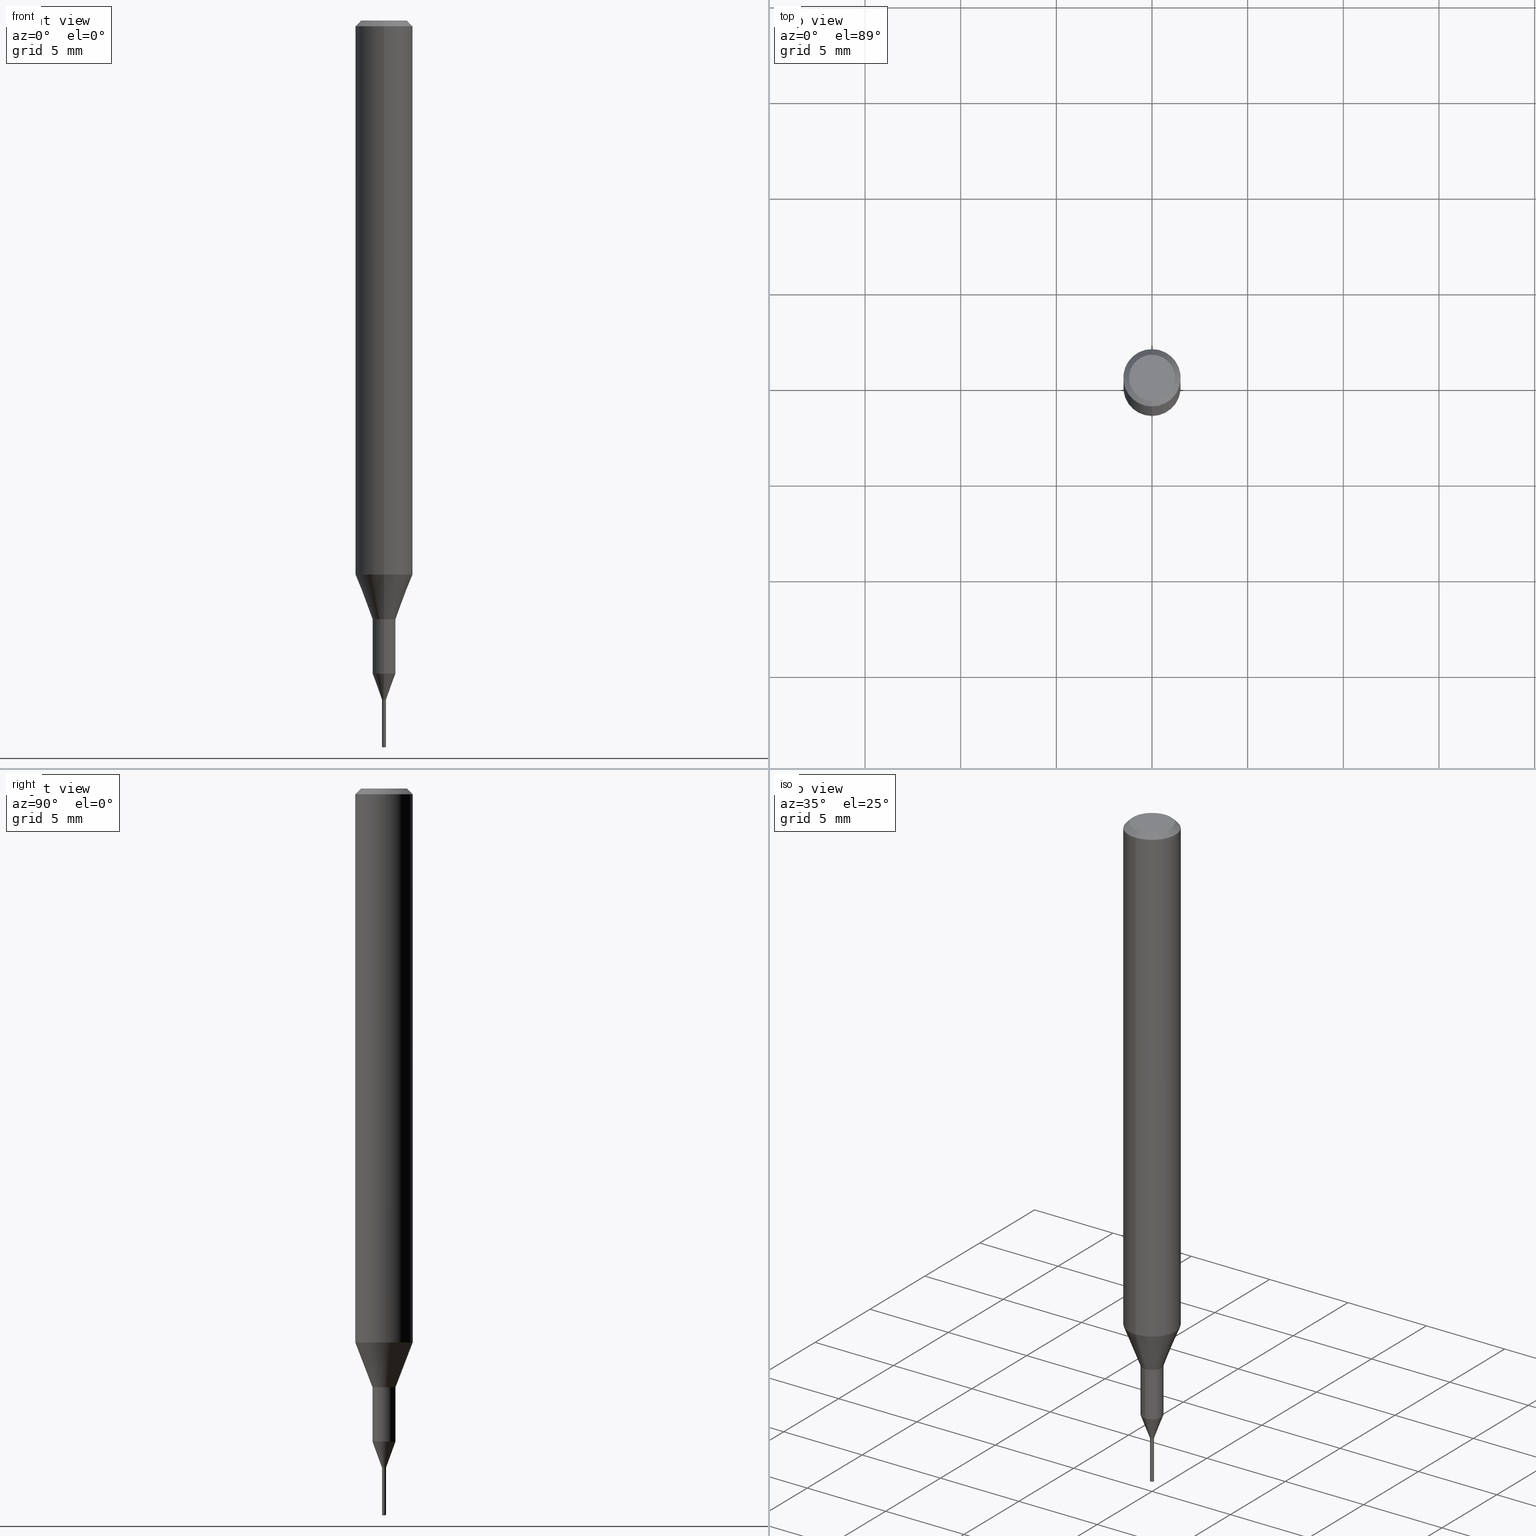
[diagram: canonical four-view strip — front | top / right | iso, engineering-drawing reading convention]
A machine part, canonical four-view strip (front | top / right | iso — engineering-drawing reading convention). The complete STEP part file that produces these views, byte-faithful:
ISO-10303-21;
HEADER;
FILE_DESCRIPTION(('no description'),'unknown implementation level');
FILE_NAME('C-UMD2021-025-Huellk.stp','  ',('CIMSOURCE GmbH'),('CADClick - KiM GmbH - www.kimweb.de'),'unknown preprocess','ACIS','unknown authorization');
FILE_SCHEMA(('automotive_design'));
ENDSEC;
DATA;
#1=MECHANICAL_DESIGN_GEOMETRIC_PRESENTATION_REPRESENTATION(' ',(#14,#15,#16,#17,#18,#19,#20,#21,#22,#23,#24,#25,#26,#27,#28,#29,#30,#31,#32,#33,#34,#35,#36,#37,#38,#39,#40,#41,#42,#43,#44,#45,#46,#47,#48,#49,#50,#51,#52,#53,#54,#55,#56,#57,#58,#59,#60,#61,#62,#63,#64,#65,#66,#67,#68,#69,#70,#71,#72,#73,#74,#75,#76,#77,#78,#79,#80,#81,#82,#83,#84,#85,#86,#87,#88,#89,#90,#91,#92),#10);
#2=PRODUCT_DEFINITION_CONTEXT('',#93,'design');
#3=APPLICATION_PROTOCOL_DEFINITION('INTERNATIONAL STANDARD','automotive_design',1994,#93);
#4=PRODUCT_CATEGORY_RELATIONSHIP('NONE','NONE',#94,#95);
#5=SHAPE_DEFINITION_REPRESENTATION(#96,#97);
#6=PRODUCT_DEFINITION_CONTEXT('',#98,'design');
#7=APPLICATION_PROTOCOL_DEFINITION('INTERNATIONAL STANDARD','automotive_design',1994,#98);
#8=PRODUCT_CATEGORY_RELATIONSHIP('NONE','NONE',#99,#100);
#9=SHAPE_DEFINITION_REPRESENTATION(#101,#102);
#10= (GEOMETRIC_REPRESENTATION_CONTEXT(3)GLOBAL_UNCERTAINTY_ASSIGNED_CONTEXT((#105))GLOBAL_UNIT_ASSIGNED_CONTEXT((#107,#108,#109))REPRESENTATION_CONTEXT('NONE','WORKSPACE'));
#14=STYLED_ITEM('',(#111),#112);
#15=STYLED_ITEM('',(#113),#114);
#16=STYLED_ITEM('',(#115),#116);
#17=STYLED_ITEM('',(#117),#118);
#18=STYLED_ITEM('',(#119),#120);
#19=STYLED_ITEM('',(#121),#122);
#20=STYLED_ITEM('',(#123),#124);
#21=STYLED_ITEM('',(#125),#126);
#22=STYLED_ITEM('',(#127),#128);
#23=STYLED_ITEM('',(#129),#130);
#24=STYLED_ITEM('',(#131),#132);
#25=STYLED_ITEM('',(#133),#134);
#26=STYLED_ITEM('',(#135),#136);
#27=STYLED_ITEM('',(#137),#138);
#28=STYLED_ITEM('',(#139),#140);
#29=STYLED_ITEM('',(#141),#142);
#30=STYLED_ITEM('',(#143),#144);
#31=STYLED_ITEM('',(#145),#146);
#32=STYLED_ITEM('',(#147),#148);
#33=STYLED_ITEM('',(#149),#150);
#34=STYLED_ITEM('',(#151),#152);
#35=STYLED_ITEM('',(#153),#154);
#36=STYLED_ITEM('',(#155),#156);
#37=STYLED_ITEM('',(#157),#158);
#38=STYLED_ITEM('',(#159),#160);
#39=STYLED_ITEM('',(#161),#162);
#40=STYLED_ITEM('',(#163),#164);
#41=STYLED_ITEM('',(#165),#166);
#42=STYLED_ITEM('',(#167),#168);
#43=STYLED_ITEM('',(#169),#170);
#44=STYLED_ITEM('',(#171),#172);
#45=STYLED_ITEM('',(#173),#174);
#46=STYLED_ITEM('',(#175),#176);
#47=STYLED_ITEM('',(#177),#178);
#48=STYLED_ITEM('',(#179),#180);
#49=STYLED_ITEM('',(#181),#182);
#50=STYLED_ITEM('',(#183),#184);
#51=STYLED_ITEM('',(#185),#186);
#52=STYLED_ITEM('',(#187),#188);
#53=STYLED_ITEM('',(#189),#190);
#54=STYLED_ITEM('',(#191),#192);
#55=STYLED_ITEM('',(#193),#194);
#56=STYLED_ITEM('',(#195),#196);
#57=STYLED_ITEM('',(#197),#198);
#58=STYLED_ITEM('',(#199),#200);
#59=STYLED_ITEM('',(#201),#202);
#60=STYLED_ITEM('',(#203),#204);
#61=STYLED_ITEM('',(#205),#206);
#62=STYLED_ITEM('',(#207),#208);
#63=STYLED_ITEM('',(#209),#210);
#64=STYLED_ITEM('',(#211),#212);
#65=STYLED_ITEM('',(#213),#214);
#66=STYLED_ITEM('',(#215),#216);
#67=STYLED_ITEM('',(#217),#218);
#68=STYLED_ITEM('',(#219),#220);
#69=STYLED_ITEM('',(#221),#222);
#70=STYLED_ITEM('',(#223),#224);
#71=STYLED_ITEM('',(#225),#226);
#72=STYLED_ITEM('',(#227),#228);
#73=STYLED_ITEM('',(#229),#230);
#74=STYLED_ITEM('',(#231),#232);
#75=STYLED_ITEM('',(#233),#234);
#76=STYLED_ITEM('',(#235),#236);
#77=STYLED_ITEM('',(#237),#238);
#78=STYLED_ITEM('',(#239),#240);
#79=STYLED_ITEM('',(#241),#242);
#80=STYLED_ITEM('',(#243),#244);
#81=STYLED_ITEM('',(#245),#246);
#82=STYLED_ITEM('',(#247),#248);
#83=STYLED_ITEM('',(#249),#250);
#84=STYLED_ITEM('',(#251),#252);
#85=STYLED_ITEM('',(#253),#254);
#86=STYLED_ITEM('',(#255),#256);
#87=STYLED_ITEM('',(#257),#258);
#88=STYLED_ITEM('',(#259),#260);
#89=STYLED_ITEM('',(#261),#262);
#90=STYLED_ITEM('',(#263),#264);
#91=STYLED_ITEM('',(#265),#266);
#92=STYLED_ITEM('',(#267),#268);
#93=APPLICATION_CONTEXT(' ');
#94=PRODUCT_CATEGORY('part','NONE');
#95=PRODUCT_RELATED_PRODUCT_CATEGORY('detail',' ',(#269));
#96=PRODUCT_DEFINITION_SHAPE('NONE','NONE',#270);
#97=ADVANCED_BREP_SHAPE_REPRESENTATION('1',(#160,#271),#10);
#98=APPLICATION_CONTEXT(' ');
#99=PRODUCT_CATEGORY('part','NONE');
#100=PRODUCT_RELATED_PRODUCT_CATEGORY('detail',' ',(#272));
#101=PRODUCT_DEFINITION_SHAPE('NONE','NONE',#273);
#102=ADVANCED_BREP_SHAPE_REPRESENTATION('2',(#178,#274),#10);
#105=UNCERTAINTY_MEASURE_WITH_UNIT(LENGTH_MEASURE(1.0E-006),#107,'','');
#107= (CONVERSION_BASED_UNIT('MILLIMETRE',#277)LENGTH_UNIT()NAMED_UNIT(#280));
#108= (NAMED_UNIT(#282)PLANE_ANGLE_UNIT()SI_UNIT($,.RADIAN.));
#109= (NAMED_UNIT(#282)SOLID_ANGLE_UNIT()SI_UNIT($,.STERADIAN.));
#111=PRESENTATION_STYLE_ASSIGNMENT((#288));
#112=VERTEX_POINT('',#289);
#113=PRESENTATION_STYLE_ASSIGNMENT((#290));
#114=EDGE_CURVE('',#228,#238,#291,.T.);
#115=PRESENTATION_STYLE_ASSIGNMENT((#292));
#116=EDGE_CURVE('',#238,#228,#293,.T.);
#117=PRESENTATION_STYLE_ASSIGNMENT((#294));
#118=VERTEX_POINT('',#295);
#119=PRESENTATION_STYLE_ASSIGNMENT((#296));
#120=EDGE_CURVE('',#206,#118,#297,.T.);
#121=PRESENTATION_STYLE_ASSIGNMENT((#298));
#122=ADVANCED_FACE('',(#299,#300),#301,.T.);
#123=PRESENTATION_STYLE_ASSIGNMENT((#302));
#124=EDGE_CURVE('',#188,#224,#303,.T.);
#125=PRESENTATION_STYLE_ASSIGNMENT((#304));
#126=EDGE_CURVE('',#250,#140,#305,.T.);
#127=PRESENTATION_STYLE_ASSIGNMENT((#306));
#128=EDGE_CURVE('',#204,#246,#307,.T.);
#129=PRESENTATION_STYLE_ASSIGNMENT((#308));
#130=EDGE_CURVE('',#236,#188,#309,.T.);
#131=PRESENTATION_STYLE_ASSIGNMENT((#310));
#132=EDGE_CURVE('',#214,#138,#311,.T.);
#133=PRESENTATION_STYLE_ASSIGNMENT((#312));
#134=ADVANCED_FACE('',(#313),#314,.T.);
#135=PRESENTATION_STYLE_ASSIGNMENT((#315));
#136=EDGE_CURVE('',#236,#246,#316,.T.);
#137=PRESENTATION_STYLE_ASSIGNMENT((#317));
#138=VERTEX_POINT('',#318);
#139=PRESENTATION_STYLE_ASSIGNMENT((#319));
#140=VERTEX_POINT('',#320);
#141=PRESENTATION_STYLE_ASSIGNMENT((#321));
#142=EDGE_CURVE('',#138,#214,#322,.T.);
#143=PRESENTATION_STYLE_ASSIGNMENT((#323));
#144=EDGE_CURVE('',#188,#236,#324,.T.);
#145=PRESENTATION_STYLE_ASSIGNMENT((#325));
#146=EDGE_CURVE('',#140,#158,#326,.T.);
#147=PRESENTATION_STYLE_ASSIGNMENT((#327));
#148=EDGE_CURVE('',#206,#138,#328,.T.);
#149=PRESENTATION_STYLE_ASSIGNMENT((#329));
#150=VERTEX_POINT('',#330);
#151=PRESENTATION_STYLE_ASSIGNMENT((#331));
#152=EDGE_CURVE('',#250,#158,#332,.T.);
#153=PRESENTATION_STYLE_ASSIGNMENT((#333));
#154=EDGE_CURVE('',#228,#150,#334,.T.);
#155=PRESENTATION_STYLE_ASSIGNMENT((#335));
#156=VERTEX_POINT('',#336);
#157=PRESENTATION_STYLE_ASSIGNMENT((#337));
#158=VERTEX_POINT('',#338);
#159=PRESENTATION_STYLE_ASSIGNMENT((#339));
#160=MANIFOLD_SOLID_BREP('1',#340);
#161=PRESENTATION_STYLE_ASSIGNMENT((#341));
#162=ADVANCED_FACE('',(#342),#343,.T.);
#163=PRESENTATION_STYLE_ASSIGNMENT((#344));
#164=EDGE_CURVE('',#112,#210,#345,.T.);
#165=PRESENTATION_STYLE_ASSIGNMENT((#346));
#166=ADVANCED_FACE('',(#347),#348,.T.);
#167=PRESENTATION_STYLE_ASSIGNMENT((#349));
#168=EDGE_CURVE('',#150,#214,#350,.T.);
#169=PRESENTATION_STYLE_ASSIGNMENT((#351));
#170=EDGE_CURVE('',#210,#112,#352,.T.);
#171=PRESENTATION_STYLE_ASSIGNMENT((#353));
#172=ADVANCED_FACE('',(#354),#355,.T.);
#173=PRESENTATION_STYLE_ASSIGNMENT((#356));
#174=ADVANCED_FACE('',(#357),#358,.T.);
#175=PRESENTATION_STYLE_ASSIGNMENT((#359));
#176=EDGE_CURVE('',#112,#192,#360,.T.);
#177=PRESENTATION_STYLE_ASSIGNMENT((#361));
#178=MANIFOLD_SOLID_BREP('2',#362);
#179=PRESENTATION_STYLE_ASSIGNMENT((#363));
#180=ADVANCED_FACE('',(#364),#365,.T.);
#181=PRESENTATION_STYLE_ASSIGNMENT((#366));
#182=EDGE_CURVE('',#224,#216,#367,.T.);
#183=PRESENTATION_STYLE_ASSIGNMENT((#368));
#184=ADVANCED_FACE('',(#369),#370,.T.);
#185=PRESENTATION_STYLE_ASSIGNMENT((#371));
#186=ADVANCED_FACE('',(#372),#373,.T.);
#187=PRESENTATION_STYLE_ASSIGNMENT((#374));
#188=VERTEX_POINT('',#375);
#189=PRESENTATION_STYLE_ASSIGNMENT((#376));
#190=EDGE_CURVE('',#248,#238,#377,.T.);
#191=PRESENTATION_STYLE_ASSIGNMENT((#378));
#192=VERTEX_POINT('',#379);
#193=PRESENTATION_STYLE_ASSIGNMENT((#380));
#194=EDGE_CURVE('',#156,#210,#381,.T.);
#195=PRESENTATION_STYLE_ASSIGNMENT((#382));
#196=EDGE_CURVE('',#156,#192,#383,.T.);
#197=PRESENTATION_STYLE_ASSIGNMENT((#384));
#198=EDGE_CURVE('',#150,#248,#385,.T.);
#199=PRESENTATION_STYLE_ASSIGNMENT((#386));
#200=ADVANCED_FACE('',(#387),#388,.T.);
#201=PRESENTATION_STYLE_ASSIGNMENT((#389));
#202=EDGE_CURVE('',#158,#250,#390,.T.);
#203=PRESENTATION_STYLE_ASSIGNMENT((#391));
#204=VERTEX_POINT('',#392);
#205=PRESENTATION_STYLE_ASSIGNMENT((#393));
#206=VERTEX_POINT('',#394);
#207=PRESENTATION_STYLE_ASSIGNMENT((#395));
#208=EDGE_CURVE('',#192,#156,#396,.T.);
#209=PRESENTATION_STYLE_ASSIGNMENT((#397));
#210=VERTEX_POINT('',#398);
#211=PRESENTATION_STYLE_ASSIGNMENT((#399));
#212=EDGE_CURVE('',#246,#204,#400,.T.);
#213=PRESENTATION_STYLE_ASSIGNMENT((#401));
#214=VERTEX_POINT('',#402);
#215=PRESENTATION_STYLE_ASSIGNMENT((#403));
#216=VERTEX_POINT('',#404);
#217=PRESENTATION_STYLE_ASSIGNMENT((#405));
#218=ADVANCED_FACE('',(#406),#407,.T.);
#219=PRESENTATION_STYLE_ASSIGNMENT((#408));
#220=ADVANCED_FACE('',(#409),#410,.T.);
#221=PRESENTATION_STYLE_ASSIGNMENT((#411));
#222=ADVANCED_FACE('',(#412),#413,.T.);
#223=PRESENTATION_STYLE_ASSIGNMENT((#414));
#224=VERTEX_POINT('',#415);
#225=PRESENTATION_STYLE_ASSIGNMENT((#416));
#226=ADVANCED_FACE('',(#417),#418,.T.);
#227=PRESENTATION_STYLE_ASSIGNMENT((#419));
#228=VERTEX_POINT('',#420);
#229=PRESENTATION_STYLE_ASSIGNMENT((#421));
#230=EDGE_CURVE('',#138,#248,#422,.T.);
#231=PRESENTATION_STYLE_ASSIGNMENT((#423));
#232=EDGE_CURVE('',#204,#188,#424,.T.);
#233=PRESENTATION_STYLE_ASSIGNMENT((#425));
#234=EDGE_CURVE('',#192,#250,#426,.T.);
#235=PRESENTATION_STYLE_ASSIGNMENT((#427));
#236=VERTEX_POINT('',#428);
#237=PRESENTATION_STYLE_ASSIGNMENT((#429));
#238=VERTEX_POINT('',#430);
#239=PRESENTATION_STYLE_ASSIGNMENT((#431));
#240=ADVANCED_FACE('',(#432),#433,.T.);
#241=PRESENTATION_STYLE_ASSIGNMENT((#434));
#242=EDGE_CURVE('',#158,#156,#435,.T.);
#243=PRESENTATION_STYLE_ASSIGNMENT((#436));
#244=EDGE_CURVE('',#214,#118,#437,.T.);
#245=PRESENTATION_STYLE_ASSIGNMENT((#438));
#246=VERTEX_POINT('',#439);
#247=PRESENTATION_STYLE_ASSIGNMENT((#440));
#248=VERTEX_POINT('',#441);
#249=PRESENTATION_STYLE_ASSIGNMENT((#442));
#250=VERTEX_POINT('',#443);
#251=PRESENTATION_STYLE_ASSIGNMENT((#444));
#252=ADVANCED_FACE('',(#445),#446,.T.);
#253=PRESENTATION_STYLE_ASSIGNMENT((#447));
#254=EDGE_CURVE('',#216,#236,#448,.T.);
#255=PRESENTATION_STYLE_ASSIGNMENT((#449));
#256=ADVANCED_FACE('',(#450),#451,.T.);
#257=PRESENTATION_STYLE_ASSIGNMENT((#452));
#258=EDGE_CURVE('',#216,#224,#453,.T.);
#259=PRESENTATION_STYLE_ASSIGNMENT((#454));
#260=EDGE_CURVE('',#118,#206,#455,.T.);
#261=PRESENTATION_STYLE_ASSIGNMENT((#456));
#262=ADVANCED_FACE('',(#457),#458,.T.);
#263=PRESENTATION_STYLE_ASSIGNMENT((#459));
#264=ADVANCED_FACE('',(#460),#461,.T.);
#265=PRESENTATION_STYLE_ASSIGNMENT((#462));
#266=EDGE_CURVE('',#248,#150,#463,.T.);
#267=PRESENTATION_STYLE_ASSIGNMENT((#464));
#268=ADVANCED_FACE('',(#465),#466,.T.);
#269=PRODUCT('1','1','PART-1-DESC',(#467));
#270=PRODUCT_DEFINITION('NONE','NONE',#468,#2);
#271=AXIS2_PLACEMENT_3D('',#469,#470,#471);
#272=PRODUCT('2','2','PART-2-DESC',(#472));
#273=PRODUCT_DEFINITION('NONE','NONE',#473,#6);
#274=AXIS2_PLACEMENT_3D('',#474,#475,#476);
#277=LENGTH_MEASURE_WITH_UNIT(LENGTH_MEASURE(1.0),#477);
#280=DIMENSIONAL_EXPONENTS(1.0,0.0,0.0,0.0,0.0,0.0,0.0);
#282=DIMENSIONAL_EXPONENTS(0.0,0.0,0.0,0.0,0.0,0.0,0.0);
#288=POINT_STYLE(' ',#478,POSITIVE_LENGTH_MEASURE(1.0E-006),#479);
#289=CARTESIAN_POINT('',(-0.106036397058823,0.0,-35.4999));
#290=CURVE_STYLE('',#480,POSITIVE_LENGTH_MEASURE(1.0E-006),#481);
#291=CIRCLE('',#482,1.2);
#292=CURVE_STYLE('',#483,POSITIVE_LENGTH_MEASURE(1.0E-006),#484);
#293=CIRCLE('',#485,1.2);
#294=POINT_STYLE(' ',#486,POSITIVE_LENGTH_MEASURE(1.0E-006),#487);
#295=CARTESIAN_POINT('',(0.0,0.6,-31.3));
#296=CURVE_STYLE('',#488,POSITIVE_LENGTH_MEASURE(1.0E-006),#489);
#297=CIRCLE('',#490,0.6);
#298=SURFACE_STYLE_USAGE(.BOTH.,#491);
#299=FACE_BOUND('',#492,.T.);
#300=FACE_OUTER_BOUND('',#493,.T.);
#301=PLANE('',#494);
#302=CURVE_STYLE('',#495,POSITIVE_LENGTH_MEASURE(1.0E-006),#496);
#303=LINE('',#497,#498);
#304=CURVE_STYLE('',#499,POSITIVE_LENGTH_MEASURE(1.0E-006),#500);
#305=LINE('',#501,#502);
#306=CURVE_STYLE('',#503,POSITIVE_LENGTH_MEASURE(1.0E-006),#504);
#307=CIRCLE('',#505,0.105036393382353);
#308=CURVE_STYLE('',#506,POSITIVE_LENGTH_MEASURE(1.0E-006),#507);
#309=CIRCLE('',#508,0.59995);
#310=CURVE_STYLE('',#509,POSITIVE_LENGTH_MEASURE(1.0E-006),#510);
#311=CIRCLE('',#511,1.5);
#312=SURFACE_STYLE_USAGE(.BOTH.,#512);
#313=FACE_OUTER_BOUND('',#513,.T.);
#314=CYLINDRICAL_SURFACE('',#514,1.5);
#315=CURVE_STYLE('',#515,POSITIVE_LENGTH_MEASURE(1.0E-006),#516);
#316=LINE('',#517,#518);
#317=POINT_STYLE(' ',#519,POSITIVE_LENGTH_MEASURE(1.0E-006),#520);
#318=CARTESIAN_POINT('',(1.83690953073357E-016,-1.5,-28.955));
#319=POINT_STYLE(' ',#521,POSITIVE_LENGTH_MEASURE(1.0E-006),#522);
#320=CARTESIAN_POINT('',(0.0,0.0,-38.0));
#321=CURVE_STYLE('',#523,POSITIVE_LENGTH_MEASURE(1.0E-006),#524);
#322=CIRCLE('',#525,1.5);
#323=CURVE_STYLE('',#526,POSITIVE_LENGTH_MEASURE(1.0E-006),#527);
#324=CIRCLE('',#528,0.59995);
#325=CURVE_STYLE('',#529,POSITIVE_LENGTH_MEASURE(1.0E-006),#530);
#326=LINE('',#531,#532);
#327=CURVE_STYLE('',#533,POSITIVE_LENGTH_MEASURE(1.0E-006),#534);
#328=LINE('',#535,#536);
#329=POINT_STYLE(' ',#537,POSITIVE_LENGTH_MEASURE(1.0E-006),#538);
#330=CARTESIAN_POINT('',(0.0,1.5,-0.300000000000001));
#331=CURVE_STYLE('',#539,POSITIVE_LENGTH_MEASURE(1.0E-006),#540);
#332=CIRCLE('',#541,0.105);
#333=CURVE_STYLE('',#542,POSITIVE_LENGTH_MEASURE(1.0E-006),#543);
#334=LINE('',#544,#545);
#335=POINT_STYLE(' ',#546,POSITIVE_LENGTH_MEASURE(1.0E-006),#547);
#336=CARTESIAN_POINT('',(0.105,1.2858366715135E-017,-35.5));
#337=POINT_STYLE(' ',#548,POSITIVE_LENGTH_MEASURE(1.0E-006),#549);
#338=CARTESIAN_POINT('',(0.105,1.2858366715135E-017,-37.97186533));
#339=SURFACE_STYLE_USAGE(.BOTH.,#550);
#340=CLOSED_SHELL('',(#226,#256,#184,#134,#180,#262,#222,#220,#200,#122,#162,#218,#252));
#341=SURFACE_STYLE_USAGE(.BOTH.,#551);
#342=FACE_OUTER_BOUND('',#552,.T.);
#343=CYLINDRICAL_SURFACE('',#553,0.59995);
#344=CURVE_STYLE('',#554,POSITIVE_LENGTH_MEASURE(1.0E-006),#555);
#345=CIRCLE('',#556,0.106036397058823);
#346=SURFACE_STYLE_USAGE(.BOTH.,#557);
#347=FACE_OUTER_BOUND('',#558,.T.);
#348=PLANE('',#559);
#349=CURVE_STYLE('',#560,POSITIVE_LENGTH_MEASURE(1.0E-006),#561);
#350=LINE('',#562,#563);
#351=CURVE_STYLE('',#564,POSITIVE_LENGTH_MEASURE(1.0E-006),#565);
#352=CIRCLE('',#566,0.106036397058823);
#353=SURFACE_STYLE_USAGE(.BOTH.,#567);
#354=FACE_OUTER_BOUND('',#568,.T.);
#355=CONICAL_SURFACE('',#569,0.105518198529412,1.47460598224945);
#356=SURFACE_STYLE_USAGE(.BOTH.,#570);
#357=FACE_OUTER_BOUND('',#571,.T.);
#358=CONICAL_SURFACE('',#572,0.0525,1.30899689639055);
#359=CURVE_STYLE('',#573,POSITIVE_LENGTH_MEASURE(1.0E-006),#574);
#360=LINE('',#575,#576);
#361=SURFACE_STYLE_USAGE(.BOTH.,#577);
#362=CLOSED_SHELL('',(#174,#268,#172,#166,#264,#186,#240));
#363=SURFACE_STYLE_USAGE(.BOTH.,#578);
#364=FACE_OUTER_BOUND('',#579,.T.);
#365=CONICAL_SURFACE('',#580,1.35,0.785398163397447);
#366=CURVE_STYLE('',#581,POSITIVE_LENGTH_MEASURE(1.0E-006),#582);
#367=CIRCLE('',#583,0.59995);
#368=SURFACE_STYLE_USAGE(.BOTH.,#584);
#369=FACE_OUTER_BOUND('',#585,.T.);
#370=CONICAL_SURFACE('',#586,1.05,0.366459241971866);
#371=SURFACE_STYLE_USAGE(.BOTH.,#587);
#372=FACE_OUTER_BOUND('',#588,.T.);
#373=CYLINDRICAL_SURFACE('',#589,0.105);
#374=POINT_STYLE(' ',#590,POSITIVE_LENGTH_MEASURE(1.0E-006),#591);
#375=CARTESIAN_POINT('',(7.34702581975735E-017,-0.59995,-34.14));
#376=CURVE_STYLE('',#592,POSITIVE_LENGTH_MEASURE(1.0E-006),#593);
#377=LINE('',#594,#595);
#378=POINT_STYLE(' ',#596,POSITIVE_LENGTH_MEASURE(1.0E-006),#597);
#379=CARTESIAN_POINT('',(-0.105,0.0,-35.5));
#380=CURVE_STYLE('',#598,POSITIVE_LENGTH_MEASURE(1.0E-006),#599);
#381=LINE('',#600,#601);
#382=CURVE_STYLE('',#602,POSITIVE_LENGTH_MEASURE(1.0E-006),#603);
#383=CIRCLE('',#604,0.105);
#384=CURVE_STYLE('',#605,POSITIVE_LENGTH_MEASURE(1.0E-006),#606);
#385=CIRCLE('',#607,1.5);
#386=SURFACE_STYLE_USAGE(.BOTH.,#608);
#387=FACE_OUTER_BOUND('',#609,.T.);
#388=CONICAL_SURFACE('',#610,1.05,0.366459241971866);
#389=CURVE_STYLE('',#611,POSITIVE_LENGTH_MEASURE(1.0E-006),#612);
#390=CIRCLE('',#613,0.105);
#391=POINT_STYLE(' ',#614,POSITIVE_LENGTH_MEASURE(1.0E-006),#615);
#392=CARTESIAN_POINT('',(1.28628234718616E-017,-0.105036393382353,-35.4999));
#393=POINT_STYLE(' ',#616,POSITIVE_LENGTH_MEASURE(1.0E-006),#617);
#394=CARTESIAN_POINT('',(7.34763812293426E-017,-0.6,-31.3));
#395=CURVE_STYLE('',#618,POSITIVE_LENGTH_MEASURE(1.0E-006),#619);
#396=CIRCLE('',#620,0.105);
#397=POINT_STYLE(' ',#621,POSITIVE_LENGTH_MEASURE(1.0E-006),#622);
#398=CARTESIAN_POINT('',(0.106036397058823,1.29852845574668E-017,-35.4999));
#399=CURVE_STYLE('',#623,POSITIVE_LENGTH_MEASURE(1.0E-006),#624);
#400=CIRCLE('',#625,0.105036393382353);
#401=POINT_STYLE(' ',#626,POSITIVE_LENGTH_MEASURE(1.0E-006),#627);
#402=CARTESIAN_POINT('',(0.0,1.5,-28.955));
#403=POINT_STYLE(' ',#628,POSITIVE_LENGTH_MEASURE(1.0E-006),#629);
#404=CARTESIAN_POINT('',(0.0,0.59995,-31.3));
#405=SURFACE_STYLE_USAGE(.BOTH.,#630);
#406=FACE_OUTER_BOUND('',#631,.T.);
#407=CONICAL_SURFACE('',#632,0.352493196691176,0.349033698532941);
#408=SURFACE_STYLE_USAGE(.BOTH.,#633);
#409=FACE_OUTER_BOUND('',#634,.T.);
#410=CYLINDRICAL_SURFACE('',#635,1.5);
#411=SURFACE_STYLE_USAGE(.BOTH.,#636);
#412=FACE_OUTER_BOUND('',#637,.T.);
#413=CONICAL_SURFACE('',#638,1.35,0.785398163397447);
#414=POINT_STYLE(' ',#639,POSITIVE_LENGTH_MEASURE(1.0E-006),#640);
#415=CARTESIAN_POINT('',(7.34702581975735E-017,-0.59995,-31.3));
#416=SURFACE_STYLE_USAGE(.BOTH.,#641);
#417=FACE_OUTER_BOUND('',#642,.T.);
#418=CONICAL_SURFACE('',#643,0.352493196691176,0.349033698532941);
#419=POINT_STYLE(' ',#644,POSITIVE_LENGTH_MEASURE(1.0E-006),#645);
#420=CARTESIAN_POINT('',(0.0,1.2,0.0));
#421=CURVE_STYLE('',#646,POSITIVE_LENGTH_MEASURE(1.0E-006),#647);
#422=LINE('',#648,#649);
#423=CURVE_STYLE('',#650,POSITIVE_LENGTH_MEASURE(1.0E-006),#651);
#424=LINE('',#652,#653);
#425=CURVE_STYLE('',#654,POSITIVE_LENGTH_MEASURE(1.0E-006),#655);
#426=LINE('',#656,#657);
#427=POINT_STYLE(' ',#658,POSITIVE_LENGTH_MEASURE(1.0E-006),#659);
#428=CARTESIAN_POINT('',(0.0,0.59995,-34.14));
#429=POINT_STYLE(' ',#660,POSITIVE_LENGTH_MEASURE(1.0E-006),#661);
#430=CARTESIAN_POINT('',(1.46952762458685E-016,-1.2,0.0));
#431=SURFACE_STYLE_USAGE(.BOTH.,#662);
#432=FACE_OUTER_BOUND('',#663,.T.);
#433=CONICAL_SURFACE('',#664,0.0525,1.30899689639055);
#434=CURVE_STYLE('',#665,POSITIVE_LENGTH_MEASURE(1.0E-006),#666);
#435=LINE('',#667,#668);
#436=CURVE_STYLE('',#669,POSITIVE_LENGTH_MEASURE(1.0E-006),#670);
#437=LINE('',#671,#672);
#438=POINT_STYLE(' ',#673,POSITIVE_LENGTH_MEASURE(1.0E-006),#674);
#439=CARTESIAN_POINT('',(0.0,0.105036393382353,-35.4999));
#440=POINT_STYLE(' ',#675,POSITIVE_LENGTH_MEASURE(1.0E-006),#676);
#441=CARTESIAN_POINT('',(1.83690953073357E-016,-1.5,-0.300000000000001));
#442=POINT_STYLE(' ',#677,POSITIVE_LENGTH_MEASURE(1.0E-006),#678);
#443=CARTESIAN_POINT('',(-0.105,0.0,-37.97186533));
#444=SURFACE_STYLE_USAGE(.BOTH.,#679);
#445=FACE_OUTER_BOUND('',#680,.T.);
#446=PLANE('',#681);
#447=CURVE_STYLE('',#682,POSITIVE_LENGTH_MEASURE(1.0E-006),#683);
#448=LINE('',#684,#685);
#449=SURFACE_STYLE_USAGE(.BOTH.,#686);
#450=FACE_OUTER_BOUND('',#687,.T.);
#451=CYLINDRICAL_SURFACE('',#688,0.59995);
#452=CURVE_STYLE('',#689,POSITIVE_LENGTH_MEASURE(1.0E-006),#690);
#453=CIRCLE('',#691,0.59995);
#454=CURVE_STYLE('',#692,POSITIVE_LENGTH_MEASURE(1.0E-006),#693);
#455=CIRCLE('',#694,0.6);
#456=SURFACE_STYLE_USAGE(.BOTH.,#695);
#457=FACE_OUTER_BOUND('',#696,.T.);
#458=PLANE('',#697);
#459=SURFACE_STYLE_USAGE(.BOTH.,#698);
#460=FACE_OUTER_BOUND('',#699,.T.);
#461=CONICAL_SURFACE('',#700,0.105518198529412,1.47460598224945);
#462=CURVE_STYLE('',#701,POSITIVE_LENGTH_MEASURE(1.0E-006),#702);
#463=CIRCLE('',#703,1.5);
#464=SURFACE_STYLE_USAGE(.BOTH.,#704);
#465=FACE_OUTER_BOUND('',#705,.T.);
#466=CYLINDRICAL_SURFACE('',#706,0.105);
#467=PRODUCT_CONTEXT('',#93,'mechanical');
#468=PRODUCT_DEFINITION_FORMATION_WITH_SPECIFIED_SOURCE(' ','NONE',#269,.NOT_KNOWN.);
#469=CARTESIAN_POINT('',(0.0,0.0,0.0));
#470=DIRECTION('',(0.0,0.0,1.0));
#471=DIRECTION('',(1.0,0.0,0.0));
#472=PRODUCT_CONTEXT('',#98,'mechanical');
#473=PRODUCT_DEFINITION_FORMATION_WITH_SPECIFIED_SOURCE(' ','NONE',#272,.NOT_KNOWN.);
#474=CARTESIAN_POINT('',(0.0,0.0,0.0));
#475=DIRECTION('',(0.0,0.0,1.0));
#476=DIRECTION('',(1.0,0.0,0.0));
#477= (NAMED_UNIT(#280)LENGTH_UNIT()SI_UNIT(.MILLI.,.METRE.));
#478=PRE_DEFINED_MARKER('');
#479=COLOUR_RGB('',0.800000011920929,0.800000011920929,0.800000011920929);
#480=DRAUGHTING_PRE_DEFINED_CURVE_FONT('continuous');
#481=COLOUR_RGB('',0.498039215803146,0.498039215803146,0.498039215803146);
#482=AXIS2_PLACEMENT_3D('',#708,#709,#710);
#483=DRAUGHTING_PRE_DEFINED_CURVE_FONT('continuous');
#484=COLOUR_RGB('',0.498039215803146,0.498039215803146,0.498039215803146);
#485=AXIS2_PLACEMENT_3D('',#711,#712,#713);
#486=PRE_DEFINED_MARKER('');
#487=COLOUR_RGB('',0.498039215803146,0.498039215803146,0.498039215803146);
#488=DRAUGHTING_PRE_DEFINED_CURVE_FONT('continuous');
#489=COLOUR_RGB('',0.498039215803146,0.498039215803146,0.498039215803146);
#490=AXIS2_PLACEMENT_3D('',#714,#715,#716);
#491=SURFACE_SIDE_STYLE('',(#717));
#492=EDGE_LOOP('',(#718,#719));
#493=EDGE_LOOP('',(#720,#721));
#494=AXIS2_PLACEMENT_3D('',#722,#723,#724);
#495=DRAUGHTING_PRE_DEFINED_CURVE_FONT('continuous');
#496=COLOUR_RGB('',0.498039215803146,0.498039215803146,0.498039215803146);
#497=CARTESIAN_POINT('',(7.34702581975735E-017,-0.59995,-32.72));
#498=VECTOR('',#725,1.0);
#499=DRAUGHTING_PRE_DEFINED_CURVE_FONT('continuous');
#500=COLOUR_RGB('',0.800000011920929,0.800000011920929,0.800000011920929);
#501=CARTESIAN_POINT('',(-0.0525,-6.42918335756748E-018,-37.985932665));
#502=VECTOR('',#726,1.0);
#503=DRAUGHTING_PRE_DEFINED_CURVE_FONT('continuous');
#504=COLOUR_RGB('',0.498039215803146,0.498039215803146,0.498039215803146);
#505=AXIS2_PLACEMENT_3D('',#727,#728,#729);
#506=DRAUGHTING_PRE_DEFINED_CURVE_FONT('continuous');
#507=COLOUR_RGB('',0.498039215803146,0.498039215803146,0.498039215803146);
#508=AXIS2_PLACEMENT_3D('',#730,#731,#732);
#509=DRAUGHTING_PRE_DEFINED_CURVE_FONT('continuous');
#510=COLOUR_RGB('',0.498039215803146,0.498039215803146,0.498039215803146);
#511=AXIS2_PLACEMENT_3D('',#733,#734,#735);
#512=SURFACE_SIDE_STYLE('',(#736));
#513=EDGE_LOOP('',(#737,#738,#739,#740));
#514=AXIS2_PLACEMENT_3D('',#741,#742,#743);
#515=DRAUGHTING_PRE_DEFINED_CURVE_FONT('continuous');
#516=COLOUR_RGB('',0.498039215803146,0.498039215803146,0.498039215803146);
#517=CARTESIAN_POINT('',(-4.31665408347176E-017,0.352493196691176,-34.81995));
#518=VECTOR('',#744,1.0);
#519=PRE_DEFINED_MARKER('');
#520=COLOUR_RGB('',0.498039215803146,0.498039215803146,0.498039215803146);
#521=PRE_DEFINED_MARKER('');
#522=COLOUR_RGB('',0.800000011920929,0.800000011920929,0.800000011920929);
#523=DRAUGHTING_PRE_DEFINED_CURVE_FONT('continuous');
#524=COLOUR_RGB('',0.498039215803146,0.498039215803146,0.498039215803146);
#525=AXIS2_PLACEMENT_3D('',#745,#746,#747);
#526=DRAUGHTING_PRE_DEFINED_CURVE_FONT('continuous');
#527=COLOUR_RGB('',0.498039215803146,0.498039215803146,0.498039215803146);
#528=AXIS2_PLACEMENT_3D('',#748,#749,#750);
#529=DRAUGHTING_PRE_DEFINED_CURVE_FONT('continuous');
#530=COLOUR_RGB('',0.800000011920929,0.800000011920929,0.800000011920929);
#531=CARTESIAN_POINT('',(0.0525,6.42918335756748E-018,-37.985932665));
#532=VECTOR('',#751,1.0);
#533=DRAUGHTING_PRE_DEFINED_CURVE_FONT('continuous');
#534=COLOUR_RGB('',0.498039215803146,0.498039215803146,0.498039215803146);
#535=CARTESIAN_POINT('',(1.2858366715135E-016,-1.05,-30.1275));
#536=VECTOR('',#752,1.0);
#537=PRE_DEFINED_MARKER('');
#538=COLOUR_RGB('',0.498039215803146,0.498039215803146,0.498039215803146);
#539=DRAUGHTING_PRE_DEFINED_CURVE_FONT('continuous');
#540=COLOUR_RGB('',0.800000011920929,0.800000011920929,0.800000011920929);
#541=AXIS2_PLACEMENT_3D('',#753,#754,#755);
#542=DRAUGHTING_PRE_DEFINED_CURVE_FONT('continuous');
#543=COLOUR_RGB('',0.498039215803146,0.498039215803146,0.498039215803146);
#544=CARTESIAN_POINT('',(-1.65321857766021E-016,1.35,-0.149999999999999));
#545=VECTOR('',#756,1.0);
#546=PRE_DEFINED_MARKER('');
#547=COLOUR_RGB('',0.800000011920929,0.800000011920929,0.800000011920929);
#548=PRE_DEFINED_MARKER('');
#549=COLOUR_RGB('',0.800000011920929,0.800000011920929,0.800000011920929);
#550=SURFACE_SIDE_STYLE('',(#757));
#551=SURFACE_SIDE_STYLE('',(#758));
#552=EDGE_LOOP('',(#759,#760,#761,#762));
#553=AXIS2_PLACEMENT_3D('',#763,#764,#765);
#554=DRAUGHTING_PRE_DEFINED_CURVE_FONT('continuous');
#555=COLOUR_RGB('',0.800000011920929,0.800000011920929,0.800000011920929);
#556=AXIS2_PLACEMENT_3D('',#766,#767,#768);
#557=SURFACE_SIDE_STYLE('',(#769));
#558=EDGE_LOOP('',(#770,#771));
#559=AXIS2_PLACEMENT_3D('',#772,#773,#774);
#560=DRAUGHTING_PRE_DEFINED_CURVE_FONT('continuous');
#561=COLOUR_RGB('',0.498039215803146,0.498039215803146,0.498039215803146);
#562=CARTESIAN_POINT('',(-1.83690953073357E-016,1.5,-14.6275));
#563=VECTOR('',#775,1.0);
#564=DRAUGHTING_PRE_DEFINED_CURVE_FONT('continuous');
#565=COLOUR_RGB('',0.800000011920929,0.800000011920929,0.800000011920929);
#566=AXIS2_PLACEMENT_3D('',#776,#777,#778);
#567=SURFACE_SIDE_STYLE('',(#779));
#568=EDGE_LOOP('',(#780,#781,#782,#783));
#569=AXIS2_PLACEMENT_3D('',#784,#785,#786);
#570=SURFACE_SIDE_STYLE('',(#787));
#571=EDGE_LOOP('',(#788,#789,#790));
#572=AXIS2_PLACEMENT_3D('',#791,#792,#793);
#573=DRAUGHTING_PRE_DEFINED_CURVE_FONT('continuous');
#574=COLOUR_RGB('',0.800000011920929,0.800000011920929,0.800000011920929);
#575=CARTESIAN_POINT('',(-0.105518198529412,-1.29218256363009E-017,-35.49995));
#576=VECTOR('',#794,1.0);
#577=SURFACE_SIDE_STYLE('',(#795));
#578=SURFACE_SIDE_STYLE('',(#796));
#579=EDGE_LOOP('',(#797,#798,#799,#800));
#580=AXIS2_PLACEMENT_3D('',#801,#802,#803);
#581=DRAUGHTING_PRE_DEFINED_CURVE_FONT('continuous');
#582=COLOUR_RGB('',0.498039215803146,0.498039215803146,0.498039215803146);
#583=AXIS2_PLACEMENT_3D('',#804,#805,#806);
#584=SURFACE_SIDE_STYLE('',(#807));
#585=EDGE_LOOP('',(#808,#809,#810,#811));
#586=AXIS2_PLACEMENT_3D('',#812,#813,#814);
#587=SURFACE_SIDE_STYLE('',(#815));
#588=EDGE_LOOP('',(#816,#817,#818,#819));
#589=AXIS2_PLACEMENT_3D('',#820,#821,#822);
#590=PRE_DEFINED_MARKER('');
#591=COLOUR_RGB('',0.498039215803146,0.498039215803146,0.498039215803146);
#592=DRAUGHTING_PRE_DEFINED_CURVE_FONT('continuous');
#593=COLOUR_RGB('',0.498039215803146,0.498039215803146,0.498039215803146);
#594=CARTESIAN_POINT('',(1.65321857766021E-016,-1.35,-0.149999999999999));
#595=VECTOR('',#823,1.0);
#596=PRE_DEFINED_MARKER('');
#597=COLOUR_RGB('',0.800000011920929,0.800000011920929,0.800000011920929);
#598=DRAUGHTING_PRE_DEFINED_CURVE_FONT('continuous');
#599=COLOUR_RGB('',0.800000011920929,0.800000011920929,0.800000011920929);
#600=CARTESIAN_POINT('',(0.105518198529412,1.29218256363009E-017,-35.49995));
#601=VECTOR('',#824,1.0);
#602=DRAUGHTING_PRE_DEFINED_CURVE_FONT('continuous');
#603=COLOUR_RGB('',0.800000011920929,0.800000011920929,0.800000011920929);
#604=AXIS2_PLACEMENT_3D('',#825,#826,#827);
#605=DRAUGHTING_PRE_DEFINED_CURVE_FONT('continuous');
#606=COLOUR_RGB('',0.498039215803146,0.498039215803146,0.498039215803146);
#607=AXIS2_PLACEMENT_3D('',#828,#829,#830);
#608=SURFACE_SIDE_STYLE('',(#831));
#609=EDGE_LOOP('',(#832,#833,#834,#835));
#610=AXIS2_PLACEMENT_3D('',#836,#837,#838);
#611=DRAUGHTING_PRE_DEFINED_CURVE_FONT('continuous');
#612=COLOUR_RGB('',0.800000011920929,0.800000011920929,0.800000011920929);
#613=AXIS2_PLACEMENT_3D('',#839,#840,#841);
#614=PRE_DEFINED_MARKER('');
#615=COLOUR_RGB('',0.498039215803146,0.498039215803146,0.498039215803146);
#616=PRE_DEFINED_MARKER('');
#617=COLOUR_RGB('',0.498039215803146,0.498039215803146,0.498039215803146);
#618=DRAUGHTING_PRE_DEFINED_CURVE_FONT('continuous');
#619=COLOUR_RGB('',0.800000011920929,0.800000011920929,0.800000011920929);
#620=AXIS2_PLACEMENT_3D('',#842,#843,#844);
#621=PRE_DEFINED_MARKER('');
#622=COLOUR_RGB('',0.800000011920929,0.800000011920929,0.800000011920929);
#623=DRAUGHTING_PRE_DEFINED_CURVE_FONT('continuous');
#624=COLOUR_RGB('',0.498039215803146,0.498039215803146,0.498039215803146);
#625=AXIS2_PLACEMENT_3D('',#845,#846,#847);
#626=PRE_DEFINED_MARKER('');
#627=COLOUR_RGB('',0.498039215803146,0.498039215803146,0.498039215803146);
#628=PRE_DEFINED_MARKER('');
#629=COLOUR_RGB('',0.498039215803146,0.498039215803146,0.498039215803146);
#630=SURFACE_SIDE_STYLE('',(#848));
#631=EDGE_LOOP('',(#849,#850,#851,#852));
#632=AXIS2_PLACEMENT_3D('',#853,#854,#855);
#633=SURFACE_SIDE_STYLE('',(#856));
#634=EDGE_LOOP('',(#857,#858,#859,#860));
#635=AXIS2_PLACEMENT_3D('',#861,#862,#863);
#636=SURFACE_SIDE_STYLE('',(#864));
#637=EDGE_LOOP('',(#865,#866,#867,#868));
#638=AXIS2_PLACEMENT_3D('',#869,#870,#871);
#639=PRE_DEFINED_MARKER('');
#640=COLOUR_RGB('',0.498039215803146,0.498039215803146,0.498039215803146);
#641=SURFACE_SIDE_STYLE('',(#872));
#642=EDGE_LOOP('',(#873,#874,#875,#876));
#643=AXIS2_PLACEMENT_3D('',#877,#878,#879);
#644=PRE_DEFINED_MARKER('');
#645=COLOUR_RGB('',0.498039215803146,0.498039215803146,0.498039215803146);
#646=DRAUGHTING_PRE_DEFINED_CURVE_FONT('continuous');
#647=COLOUR_RGB('',0.498039215803146,0.498039215803146,0.498039215803146);
#648=CARTESIAN_POINT('',(1.83690953073357E-016,-1.5,-14.6275));
#649=VECTOR('',#880,1.0);
#650=DRAUGHTING_PRE_DEFINED_CURVE_FONT('continuous');
#651=COLOUR_RGB('',0.498039215803146,0.498039215803146,0.498039215803146);
#652=CARTESIAN_POINT('',(4.31665408347176E-017,-0.352493196691176,-34.81995));
#653=VECTOR('',#881,1.0);
#654=DRAUGHTING_PRE_DEFINED_CURVE_FONT('continuous');
#655=COLOUR_RGB('',0.800000011920929,0.800000011920929,0.800000011920929);
#656=CARTESIAN_POINT('',(-0.105,-1.2858366715135E-017,-36.735932665));
#657=VECTOR('',#882,1.0);
#658=PRE_DEFINED_MARKER('');
#659=COLOUR_RGB('',0.498039215803146,0.498039215803146,0.498039215803146);
#660=PRE_DEFINED_MARKER('');
#661=COLOUR_RGB('',0.498039215803146,0.498039215803146,0.498039215803146);
#662=SURFACE_SIDE_STYLE('',(#883));
#663=EDGE_LOOP('',(#884,#885,#886));
#664=AXIS2_PLACEMENT_3D('',#887,#888,#889);
#665=DRAUGHTING_PRE_DEFINED_CURVE_FONT('continuous');
#666=COLOUR_RGB('',0.800000011920929,0.800000011920929,0.800000011920929);
#667=CARTESIAN_POINT('',(0.105,1.2858366715135E-017,-36.735932665));
#668=VECTOR('',#890,1.0);
#669=DRAUGHTING_PRE_DEFINED_CURVE_FONT('continuous');
#670=COLOUR_RGB('',0.498039215803146,0.498039215803146,0.498039215803146);
#671=CARTESIAN_POINT('',(-1.2858366715135E-016,1.05,-30.1275));
#672=VECTOR('',#891,1.0);
#673=PRE_DEFINED_MARKER('');
#674=COLOUR_RGB('',0.498039215803146,0.498039215803146,0.498039215803146);
#675=PRE_DEFINED_MARKER('');
#676=COLOUR_RGB('',0.498039215803146,0.498039215803146,0.498039215803146);
#677=PRE_DEFINED_MARKER('');
#678=COLOUR_RGB('',0.800000011920929,0.800000011920929,0.800000011920929);
#679=SURFACE_SIDE_STYLE('',(#892));
#680=EDGE_LOOP('',(#893,#894));
#681=AXIS2_PLACEMENT_3D('',#895,#896,#897);
#682=DRAUGHTING_PRE_DEFINED_CURVE_FONT('continuous');
#683=COLOUR_RGB('',0.498039215803146,0.498039215803146,0.498039215803146);
#684=CARTESIAN_POINT('',(-7.34702581975735E-017,0.59995,-32.72));
#685=VECTOR('',#898,1.0);
#686=SURFACE_SIDE_STYLE('',(#899));
#687=EDGE_LOOP('',(#900,#901,#902,#903));
#688=AXIS2_PLACEMENT_3D('',#904,#905,#906);
#689=DRAUGHTING_PRE_DEFINED_CURVE_FONT('continuous');
#690=COLOUR_RGB('',0.498039215803146,0.498039215803146,0.498039215803146);
#691=AXIS2_PLACEMENT_3D('',#907,#908,#909);
#692=DRAUGHTING_PRE_DEFINED_CURVE_FONT('continuous');
#693=COLOUR_RGB('',0.498039215803146,0.498039215803146,0.498039215803146);
#694=AXIS2_PLACEMENT_3D('',#910,#911,#912);
#695=SURFACE_SIDE_STYLE('',(#913));
#696=EDGE_LOOP('',(#914,#915));
#697=AXIS2_PLACEMENT_3D('',#916,#917,#918);
#698=SURFACE_SIDE_STYLE('',(#919));
#699=EDGE_LOOP('',(#920,#921,#922,#923));
#700=AXIS2_PLACEMENT_3D('',#924,#925,#926);
#701=DRAUGHTING_PRE_DEFINED_CURVE_FONT('continuous');
#702=COLOUR_RGB('',0.498039215803146,0.498039215803146,0.498039215803146);
#703=AXIS2_PLACEMENT_3D('',#927,#928,#929);
#704=SURFACE_SIDE_STYLE('',(#930));
#705=EDGE_LOOP('',(#931,#932,#933,#934));
#706=AXIS2_PLACEMENT_3D('',#935,#936,#937);
#708=CARTESIAN_POINT('',(0.0,0.0,0.0));
#709=DIRECTION('',(0.0,0.0,-1.0));
#710=DIRECTION('',(0.0,1.0,0.0));
#711=CARTESIAN_POINT('',(0.0,0.0,0.0));
#712=DIRECTION('',(0.0,0.0,-1.0));
#713=DIRECTION('',(0.0,1.0,0.0));
#714=CARTESIAN_POINT('',(0.0,0.0,-31.3));
#715=DIRECTION('',(0.0,0.0,-1.0));
#716=DIRECTION('',(0.0,1.0,0.0));
#717=SURFACE_STYLE_FILL_AREA(#938);
#718=ORIENTED_EDGE('',*,*,#258,.F.);
#719=ORIENTED_EDGE('',*,*,#182,.F.);
#720=ORIENTED_EDGE('',*,*,#260,.T.);
#721=ORIENTED_EDGE('',*,*,#120,.T.);
#722=CARTESIAN_POINT('',(0.0,0.599975,-31.3));
#723=DIRECTION('',(0.0,1.77635683940045E-011,-1.0));
#724=DIRECTION('',(0.0,1.0,1.77635683940045E-011));
#725=DIRECTION('',(-0.0,-0.0,1.0));
#726=DIRECTION('',(0.96592581526203,1.18287889069094E-016,-0.258819086255983));
#727=CARTESIAN_POINT('',(0.0,0.0,-35.4999));
#728=DIRECTION('',(0.0,0.0,-1.0));
#729=DIRECTION('',(0.0,1.0,0.0));
#730=CARTESIAN_POINT('',(0.0,0.0,-34.14));
#731=DIRECTION('',(0.0,0.0,-1.0));
#732=DIRECTION('',(0.0,1.0,0.0));
#733=CARTESIAN_POINT('',(0.0,0.0,-28.955));
#734=DIRECTION('',(0.0,0.0,-1.0));
#735=DIRECTION('',(0.0,1.0,0.0));
#736=SURFACE_STYLE_FILL_AREA(#939);
#737=ORIENTED_EDGE('',*,*,#168,.F.);
#738=ORIENTED_EDGE('',*,*,#198,.T.);
#739=ORIENTED_EDGE('',*,*,#230,.F.);
#740=ORIENTED_EDGE('',*,*,#132,.F.);
#741=CARTESIAN_POINT('',(0.0,0.0,-14.6275));
#742=DIRECTION('',(-0.0,-0.0,1.0));
#743=DIRECTION('',(0.0,1.0,0.0));
#744=DIRECTION('',(4.18803041561391E-017,-0.341989930277739,-0.939703616885998));
#745=CARTESIAN_POINT('',(0.0,0.0,-28.955));
#746=DIRECTION('',(0.0,0.0,-1.0));
#747=DIRECTION('',(0.0,1.0,0.0));
#748=CARTESIAN_POINT('',(0.0,0.0,-34.14));
#749=DIRECTION('',(0.0,0.0,-1.0));
#750=DIRECTION('',(0.0,1.0,0.0));
#751=DIRECTION('',(0.96592581526203,1.18287889069094E-016,0.258819086255983));
#752=DIRECTION('',(4.38791184365088E-017,-0.358312026550805,0.93360189140182));
#753=CARTESIAN_POINT('',(0.0,0.0,-37.97186533));
#754=DIRECTION('',(0.0,0.0,-1.0));
#755=DIRECTION('',(-1.0,0.0,0.0));
#756=DIRECTION('',(-8.65927457071934E-017,0.707106781186546,-0.707106781186549));
#757=SURFACE_STYLE_FILL_AREA(#940);
#758=SURFACE_STYLE_FILL_AREA(#941);
#759=ORIENTED_EDGE('',*,*,#254,.T.);
#760=ORIENTED_EDGE('',*,*,#144,.F.);
#761=ORIENTED_EDGE('',*,*,#124,.T.);
#762=ORIENTED_EDGE('',*,*,#182,.T.);
#763=CARTESIAN_POINT('',(0.0,0.0,-32.72));
#764=DIRECTION('',(-0.0,-0.0,1.0));
#765=DIRECTION('',(0.0,1.0,0.0));
#766=CARTESIAN_POINT('',(0.0,0.0,-35.4999));
#767=DIRECTION('',(0.0,0.0,-1.0));
#768=DIRECTION('',(-1.0,0.0,0.0));
#769=SURFACE_STYLE_FILL_AREA(#942);
#770=ORIENTED_EDGE('',*,*,#164,.F.);
#771=ORIENTED_EDGE('',*,*,#170,.F.);
#772=CARTESIAN_POINT('',(-0.0530181985294117,0.0,-35.4999));
#773=DIRECTION('',(0.0,0.0,1.0));
#774=DIRECTION('',(1.0,0.0,0.0));
#775=DIRECTION('',(0.0,0.0,-1.0));
#776=CARTESIAN_POINT('',(0.0,0.0,-35.4999));
#777=DIRECTION('',(0.0,0.0,-1.0));
#778=DIRECTION('',(-1.0,0.0,0.0));
#779=SURFACE_STYLE_FILL_AREA(#943);
#780=ORIENTED_EDGE('',*,*,#176,.F.);
#781=ORIENTED_EDGE('',*,*,#164,.T.);
#782=ORIENTED_EDGE('',*,*,#194,.F.);
#783=ORIENTED_EDGE('',*,*,#208,.F.);
#784=CARTESIAN_POINT('',(0.0,0.0,-35.49995));
#785=DIRECTION('',(-0.0,-0.0,1.0));
#786=DIRECTION('',(-1.0,0.0,0.0));
#787=SURFACE_STYLE_FILL_AREA(#944);
#788=ORIENTED_EDGE('',*,*,#146,.F.);
#789=ORIENTED_EDGE('',*,*,#126,.F.);
#790=ORIENTED_EDGE('',*,*,#152,.T.);
#791=CARTESIAN_POINT('',(0.0,0.0,-37.985932665));
#792=DIRECTION('',(-0.0,-0.0,1.0));
#793=DIRECTION('',(-1.0,0.0,0.0));
#794=DIRECTION('',(0.995377274803167,1.21894533517436E-016,-0.0960420783064436));
#795=SURFACE_STYLE_FILL_AREA(#945);
#796=SURFACE_STYLE_FILL_AREA(#946);
#797=ORIENTED_EDGE('',*,*,#154,.F.);
#798=ORIENTED_EDGE('',*,*,#114,.T.);
#799=ORIENTED_EDGE('',*,*,#190,.F.);
#800=ORIENTED_EDGE('',*,*,#198,.F.);
#801=CARTESIAN_POINT('',(0.0,0.0,-0.149999999999999));
#802=DIRECTION('',(0.0,-0.0,-1.0));
#803=DIRECTION('',(0.0,1.0,0.0));
#804=CARTESIAN_POINT('',(0.0,0.0,-31.3));
#805=DIRECTION('',(0.0,0.0,-1.0));
#806=DIRECTION('',(0.0,1.0,0.0));
#807=SURFACE_STYLE_FILL_AREA(#947);
#808=ORIENTED_EDGE('',*,*,#244,.F.);
#809=ORIENTED_EDGE('',*,*,#132,.T.);
#810=ORIENTED_EDGE('',*,*,#148,.F.);
#811=ORIENTED_EDGE('',*,*,#260,.F.);
#812=CARTESIAN_POINT('',(0.0,0.0,-30.1275));
#813=DIRECTION('',(-0.0,-0.0,1.0));
#814=DIRECTION('',(0.0,1.0,0.0));
#815=SURFACE_STYLE_FILL_AREA(#948);
#816=ORIENTED_EDGE('',*,*,#234,.T.);
#817=ORIENTED_EDGE('',*,*,#202,.F.);
#818=ORIENTED_EDGE('',*,*,#242,.T.);
#819=ORIENTED_EDGE('',*,*,#196,.T.);
#820=CARTESIAN_POINT('',(0.0,0.0,-36.735932665));
#821=DIRECTION('',(-0.0,-0.0,1.0));
#822=DIRECTION('',(-1.0,0.0,0.0));
#823=DIRECTION('',(-8.65927457071934E-017,0.707106781186546,0.707106781186549));
#824=DIRECTION('',(0.995377274803167,1.21894533517436E-016,0.0960420783064436));
#825=CARTESIAN_POINT('',(0.0,0.0,-35.5));
#826=DIRECTION('',(0.0,0.0,-1.0));
#827=DIRECTION('',(-1.0,0.0,0.0));
#828=CARTESIAN_POINT('',(0.0,0.0,-0.300000000000001));
#829=DIRECTION('',(0.0,0.0,-1.0));
#830=DIRECTION('',(0.0,1.0,0.0));
#831=SURFACE_STYLE_FILL_AREA(#949);
#832=ORIENTED_EDGE('',*,*,#244,.T.);
#833=ORIENTED_EDGE('',*,*,#120,.F.);
#834=ORIENTED_EDGE('',*,*,#148,.T.);
#835=ORIENTED_EDGE('',*,*,#142,.T.);
#836=CARTESIAN_POINT('',(0.0,0.0,-30.1275));
#837=DIRECTION('',(-0.0,-0.0,1.0));
#838=DIRECTION('',(0.0,1.0,0.0));
#839=CARTESIAN_POINT('',(0.0,0.0,-37.97186533));
#840=DIRECTION('',(0.0,0.0,-1.0));
#841=DIRECTION('',(-1.0,0.0,0.0));
#842=CARTESIAN_POINT('',(0.0,0.0,-35.5));
#843=DIRECTION('',(0.0,0.0,-1.0));
#844=DIRECTION('',(-1.0,0.0,0.0));
#845=CARTESIAN_POINT('',(0.0,0.0,-35.4999));
#846=DIRECTION('',(0.0,0.0,-1.0));
#847=DIRECTION('',(0.0,1.0,0.0));
#848=SURFACE_STYLE_FILL_AREA(#950);
#849=ORIENTED_EDGE('',*,*,#136,.T.);
#850=ORIENTED_EDGE('',*,*,#128,.F.);
#851=ORIENTED_EDGE('',*,*,#232,.T.);
#852=ORIENTED_EDGE('',*,*,#144,.T.);
#853=CARTESIAN_POINT('',(0.0,0.0,-34.81995));
#854=DIRECTION('',(-0.0,-0.0,1.0));
#855=DIRECTION('',(0.0,1.0,0.0));
#856=SURFACE_STYLE_FILL_AREA(#951);
#857=ORIENTED_EDGE('',*,*,#168,.T.);
#858=ORIENTED_EDGE('',*,*,#142,.F.);
#859=ORIENTED_EDGE('',*,*,#230,.T.);
#860=ORIENTED_EDGE('',*,*,#266,.T.);
#861=CARTESIAN_POINT('',(0.0,0.0,-14.6275));
#862=DIRECTION('',(-0.0,-0.0,1.0));
#863=DIRECTION('',(0.0,1.0,0.0));
#864=SURFACE_STYLE_FILL_AREA(#952);
#865=ORIENTED_EDGE('',*,*,#154,.T.);
#866=ORIENTED_EDGE('',*,*,#266,.F.);
#867=ORIENTED_EDGE('',*,*,#190,.T.);
#868=ORIENTED_EDGE('',*,*,#116,.T.);
#869=CARTESIAN_POINT('',(0.0,0.0,-0.149999999999999));
#870=DIRECTION('',(0.0,-0.0,-1.0));
#871=DIRECTION('',(0.0,1.0,0.0));
#872=SURFACE_STYLE_FILL_AREA(#953);
#873=ORIENTED_EDGE('',*,*,#136,.F.);
#874=ORIENTED_EDGE('',*,*,#130,.T.);
#875=ORIENTED_EDGE('',*,*,#232,.F.);
#876=ORIENTED_EDGE('',*,*,#212,.F.);
#877=CARTESIAN_POINT('',(0.0,0.0,-34.81995));
#878=DIRECTION('',(-0.0,-0.0,1.0));
#879=DIRECTION('',(0.0,1.0,0.0));
#880=DIRECTION('',(-0.0,-0.0,1.0));
#881=DIRECTION('',(4.18803041561391E-017,-0.341989930277739,0.939703616885998));
#882=DIRECTION('',(0.0,0.0,-1.0));
#883=SURFACE_STYLE_FILL_AREA(#954);
#884=ORIENTED_EDGE('',*,*,#146,.T.);
#885=ORIENTED_EDGE('',*,*,#202,.T.);
#886=ORIENTED_EDGE('',*,*,#126,.T.);
#887=CARTESIAN_POINT('',(0.0,0.0,-37.985932665));
#888=DIRECTION('',(-0.0,-0.0,1.0));
#889=DIRECTION('',(-1.0,0.0,0.0));
#890=DIRECTION('',(-0.0,-0.0,1.0));
#891=DIRECTION('',(4.38791184365088E-017,-0.358312026550805,-0.93360189140182));
#892=SURFACE_STYLE_FILL_AREA(#955);
#893=ORIENTED_EDGE('',*,*,#212,.T.);
#894=ORIENTED_EDGE('',*,*,#128,.T.);
#895=CARTESIAN_POINT('',(0.0,0.0525181966911765,-35.4999));
#896=DIRECTION('',(0.0,0.0,-1.0));
#897=DIRECTION('',(0.0,1.0,0.0));
#898=DIRECTION('',(0.0,0.0,-1.0));
#899=SURFACE_STYLE_FILL_AREA(#956);
#900=ORIENTED_EDGE('',*,*,#254,.F.);
#901=ORIENTED_EDGE('',*,*,#258,.T.);
#902=ORIENTED_EDGE('',*,*,#124,.F.);
#903=ORIENTED_EDGE('',*,*,#130,.F.);
#904=CARTESIAN_POINT('',(0.0,0.0,-32.72));
#905=DIRECTION('',(-0.0,-0.0,1.0));
#906=DIRECTION('',(0.0,1.0,0.0));
#907=CARTESIAN_POINT('',(0.0,0.0,-31.3));
#908=DIRECTION('',(0.0,0.0,-1.0));
#909=DIRECTION('',(0.0,1.0,0.0));
#910=CARTESIAN_POINT('',(0.0,0.0,-31.3));
#911=DIRECTION('',(0.0,0.0,-1.0));
#912=DIRECTION('',(0.0,1.0,0.0));
#913=SURFACE_STYLE_FILL_AREA(#957);
#914=ORIENTED_EDGE('',*,*,#114,.F.);
#915=ORIENTED_EDGE('',*,*,#116,.F.);
#916=CARTESIAN_POINT('',(0.0,0.6,0.0));
#917=DIRECTION('',(-0.0,0.0,1.0));
#918=DIRECTION('',(0.0,-1.0,0.0));
#919=SURFACE_STYLE_FILL_AREA(#958);
#920=ORIENTED_EDGE('',*,*,#176,.T.);
#921=ORIENTED_EDGE('',*,*,#196,.F.);
#922=ORIENTED_EDGE('',*,*,#194,.T.);
#923=ORIENTED_EDGE('',*,*,#170,.T.);
#924=CARTESIAN_POINT('',(0.0,0.0,-35.49995));
#925=DIRECTION('',(-0.0,-0.0,1.0));
#926=DIRECTION('',(-1.0,0.0,0.0));
#927=CARTESIAN_POINT('',(0.0,0.0,-0.300000000000001));
#928=DIRECTION('',(0.0,0.0,-1.0));
#929=DIRECTION('',(0.0,1.0,0.0));
#930=SURFACE_STYLE_FILL_AREA(#959);
#931=ORIENTED_EDGE('',*,*,#234,.F.);
#932=ORIENTED_EDGE('',*,*,#208,.T.);
#933=ORIENTED_EDGE('',*,*,#242,.F.);
#934=ORIENTED_EDGE('',*,*,#152,.F.);
#935=CARTESIAN_POINT('',(0.0,0.0,-36.735932665));
#936=DIRECTION('',(-0.0,-0.0,1.0));
#937=DIRECTION('',(-1.0,0.0,0.0));
#938=FILL_AREA_STYLE('',(#960));
#939=FILL_AREA_STYLE('',(#961));
#940=FILL_AREA_STYLE('',(#962));
#941=FILL_AREA_STYLE('',(#963));
#942=FILL_AREA_STYLE('',(#964));
#943=FILL_AREA_STYLE('',(#965));
#944=FILL_AREA_STYLE('',(#966));
#945=FILL_AREA_STYLE('',(#967));
#946=FILL_AREA_STYLE('',(#968));
#947=FILL_AREA_STYLE('',(#969));
#948=FILL_AREA_STYLE('',(#970));
#949=FILL_AREA_STYLE('',(#971));
#950=FILL_AREA_STYLE('',(#972));
#951=FILL_AREA_STYLE('',(#973));
#952=FILL_AREA_STYLE('',(#974));
#953=FILL_AREA_STYLE('',(#975));
#954=FILL_AREA_STYLE('',(#976));
#955=FILL_AREA_STYLE('',(#977));
#956=FILL_AREA_STYLE('',(#978));
#957=FILL_AREA_STYLE('',(#979));
#958=FILL_AREA_STYLE('',(#980));
#959=FILL_AREA_STYLE('',(#981));
#960=FILL_AREA_STYLE_COLOUR('',#982);
#961=FILL_AREA_STYLE_COLOUR('',#983);
#962=FILL_AREA_STYLE_COLOUR('',#984);
#963=FILL_AREA_STYLE_COLOUR('',#985);
#964=FILL_AREA_STYLE_COLOUR('',#986);
#965=FILL_AREA_STYLE_COLOUR('',#987);
#966=FILL_AREA_STYLE_COLOUR('',#988);
#967=FILL_AREA_STYLE_COLOUR('',#989);
#968=FILL_AREA_STYLE_COLOUR('',#990);
#969=FILL_AREA_STYLE_COLOUR('',#991);
#970=FILL_AREA_STYLE_COLOUR('',#992);
#971=FILL_AREA_STYLE_COLOUR('',#993);
#972=FILL_AREA_STYLE_COLOUR('',#994);
#973=FILL_AREA_STYLE_COLOUR('',#995);
#974=FILL_AREA_STYLE_COLOUR('',#996);
#975=FILL_AREA_STYLE_COLOUR('',#997);
#976=FILL_AREA_STYLE_COLOUR('',#998);
#977=FILL_AREA_STYLE_COLOUR('',#999);
#978=FILL_AREA_STYLE_COLOUR('',#1000);
#979=FILL_AREA_STYLE_COLOUR('',#1001);
#980=FILL_AREA_STYLE_COLOUR('',#1002);
#981=FILL_AREA_STYLE_COLOUR('',#1003);
#982=COLOUR_RGB('',0.498039215803146,0.498039215803146,0.498039215803146);
#983=COLOUR_RGB('',0.498039215803146,0.498039215803146,0.498039215803146);
#984=COLOUR_RGB('',0.498039215803146,0.498039215803146,0.498039215803146);
#985=COLOUR_RGB('',0.498039215803146,0.498039215803146,0.498039215803146);
#986=COLOUR_RGB('',0.800000011920929,0.800000011920929,0.800000011920929);
#987=COLOUR_RGB('',0.800000011920929,0.800000011920929,0.800000011920929);
#988=COLOUR_RGB('',0.800000011920929,0.800000011920929,0.800000011920929);
#989=COLOUR_RGB('',0.800000011920929,0.800000011920929,0.800000011920929);
#990=COLOUR_RGB('',0.498039215803146,0.498039215803146,0.498039215803146);
#991=COLOUR_RGB('',0.498039215803146,0.498039215803146,0.498039215803146);
#992=COLOUR_RGB('',0.800000011920929,0.800000011920929,0.800000011920929);
#993=COLOUR_RGB('',0.498039215803146,0.498039215803146,0.498039215803146);
#994=COLOUR_RGB('',0.498039215803146,0.498039215803146,0.498039215803146);
#995=COLOUR_RGB('',0.498039215803146,0.498039215803146,0.498039215803146);
#996=COLOUR_RGB('',0.498039215803146,0.498039215803146,0.498039215803146);
#997=COLOUR_RGB('',0.498039215803146,0.498039215803146,0.498039215803146);
#998=COLOUR_RGB('',0.800000011920929,0.800000011920929,0.800000011920929);
#999=COLOUR_RGB('',0.498039215803146,0.498039215803146,0.498039215803146);
#1000=COLOUR_RGB('',0.498039215803146,0.498039215803146,0.498039215803146);
#1001=COLOUR_RGB('',0.498039215803146,0.498039215803146,0.498039215803146);
#1002=COLOUR_RGB('',0.800000011920929,0.800000011920929,0.800000011920929);
#1003=COLOUR_RGB('',0.800000011920929,0.800000011920929,0.800000011920929);
#1004=AXIS2_PLACEMENT_3D('PCS',#1005,#1006,#1007);
#1005=CARTESIAN_POINT('',(0.0,0.0,0.0));
#1006=DIRECTION('',(0.0,0.0,1.0));
#1007=DIRECTION('',(1.0,0.0,0.0));
#1008=AXIS2_PLACEMENT_3D('CIP',#1009,#1010,#1011);
#1009=CARTESIAN_POINT('',(0.0,0.0,-38.0));
#1010=DIRECTION('',(0.0,0.0,1.0));
#1011=DIRECTION('',(1.0,0.0,0.0));
#1012=AXIS2_PLACEMENT_3D('CRP',#1013,#1014,#1015);
#1013=CARTESIAN_POINT('',(-0.105,0.0,-37.9719));
#1014=DIRECTION('',(0.0,0.0,1.0));
#1015=DIRECTION('',(1.0,0.0,0.0));
#1016=AXIS2_PLACEMENT_3D('MCS',#1017,#1018,#1019);
#1017=CARTESIAN_POINT('',(0.0,0.0,-28.955));
#1018=DIRECTION('',(0.0,0.0,1.0));
#1019=DIRECTION('',(1.0,0.0,0.0));
#1020=CONSTRUCTIVE_GEOMETRY_REPRESENTATION_RELATIONSHIP('coordinate systems',$,#97,#1021);
#1021=CONSTRUCTIVE_GEOMETRY_REPRESENTATION('coordinate systems',(#1004,#1008,#1012,#1016),#10);
ENDSEC;
END-ISO-10303-21;
